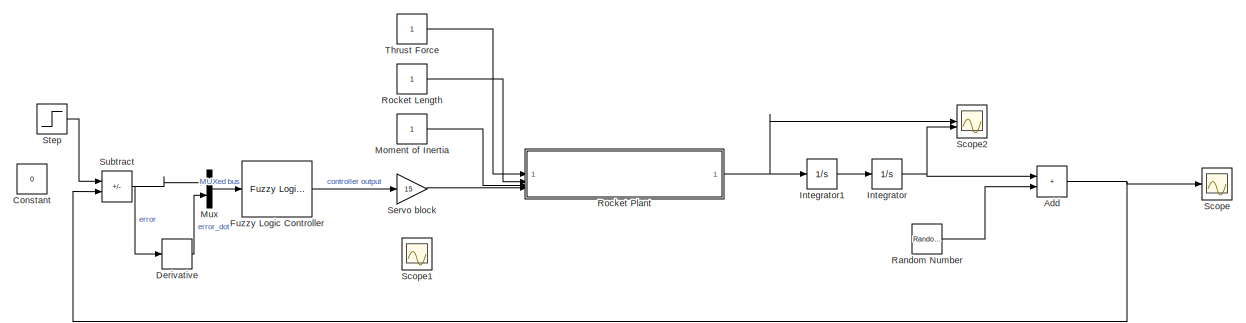
[diagram: root canvas - part 1/2, central region]
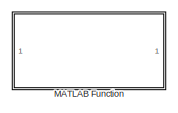
[diagram: root canvas - part 2/2, bottom right region]
MODEL slx_f3963c7aecb5
KIND model
CONFIG AbsTol = auto
CONFIG EnableMultiTasking = off
CONFIG FixedStep = auto
CONFIG MaxStep = auto
CONFIG MinStep = auto
CONFIG RelTol = 1e-3
CONFIG SampleTimeConstraint = Unconstrained
CONFIG SolverName = VariableStepAuto
CONFIG StartTime = 0.0
CONFIG StopTime = 200
BLOCK [Sum] Add
  IconShape = rectangular
BLOCK [Constant] Constant
  Value = 0
BLOCK [Derivative] Derivative
BLOCK [Reference] Fuzzy Logic Controller  REF=fuzblock/Fuzzy Logic   (lib defined in mdl_858b3b3e7478)
Controller
  SourceBlock = fuzblock/Fuzzy Logic \nController
  SourceType = Fuzzy Inference System
BLOCK [Integrator] Integrator
BLOCK [Integrator] Integrator1
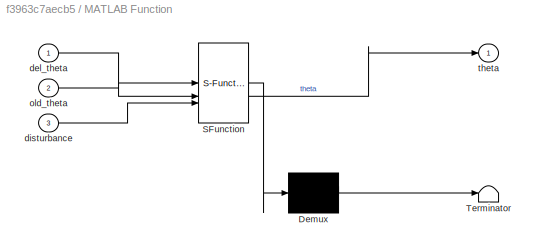
BLOCK [SubSystem] MATLAB Function
  ErrorFcn = Stateflow.Translate.translate
  PermitHierarchicalResolution = ExplicitOnly
  SFBlockType = MATLAB Function
  TreatAsAtomicUnit = on
BLOCK [Demux] MATLAB Function/ Demux 
  Outputs = 1
BLOCK [S-Function] MATLAB Function/ SFunction 
  EnableBusSupport = on
  FunctionName = sf_sfun
  PortCounts = [3 2]
  SFcnIsStateOwnerBlock = off
  SFunctionDeploymentMode = off
  Tag = Stateflow S-Function 1
BLOCK [Terminator] MATLAB Function/ Terminator 
BLOCK [Inport] MATLAB Function/del_theta
BLOCK [Inport] MATLAB Function/disturbance
  Port = 3
BLOCK [Inport] MATLAB Function/old_theta
  Port = 2
BLOCK [Outport] MATLAB Function/theta
BLOCK [Constant] Moment of Inertia
BLOCK [Mux] Mux
  DisplayOption = signals
  Inputs = 2
BLOCK [RandomNumber] Random Number
  SampleTime = 0.1
  Variance = 0.01
BLOCK [Constant] Rocket Length
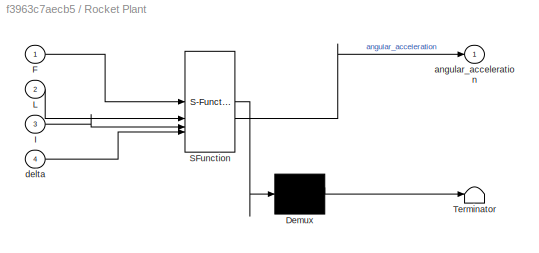
BLOCK [SubSystem] Rocket Plant
  ErrorFcn = Stateflow.Translate.translate
  PermitHierarchicalResolution = ExplicitOnly
  SFBlockType = MATLAB Function
  TreatAsAtomicUnit = on
BLOCK [Demux] Rocket Plant/ Demux 
  Outputs = 1
BLOCK [S-Function] Rocket Plant/ SFunction 
  EnableBusSupport = on
  FunctionName = sf_sfun
  PortCounts = [4 2]
  SFcnIsStateOwnerBlock = off
  SFunctionDeploymentMode = off
  Tag = Stateflow S-Function 2
BLOCK [Terminator] Rocket Plant/ Terminator 
BLOCK [Inport] Rocket Plant/F
BLOCK [Inport] Rocket Plant/I
  Port = 3
BLOCK [Inport] Rocket Plant/L
  Port = 2
BLOCK [Outport] Rocket Plant/angular_acceleration
BLOCK [Inport] Rocket Plant/delta
  Port = 4
BLOCK [Scope] Scope
  Floating = off
  NumInputPorts = 1
  ScopeSpecificationString = Simulink.scopes.TimeScopeBlockCfg('CurrentConfiguration', extmgr.ConfigurationSet(extmgr.Configuration('Core','General UI',true),extmgr.Configuration('Core','Source UI',true),extmgr.Configuration('Sources','WiredSimulink',true),extmgr.Configuration('Visuals','Time Domain',true,'SerializedDisplays',{struct('MinYLimReal','-1.22963','MaxYLimReal','9.61509','YLabelReal','','MinYLimMag','0.00000','MaxY...<+1480ch>
BLOCK [Scope] Scope1
  Floating = off
  NumInputPorts = 1
  ScopeSpecificationString = Simulink.scopes.TimeScopeBlockCfg('CurrentConfiguration', extmgr.ConfigurationSet(extmgr.Configuration('Core','General UI',true),extmgr.Configuration('Core','Source UI',true),extmgr.Configuration('Sources','WiredSimulink',true,'DataLoggingVariableName','ScopeData1'),extmgr.Configuration('Visuals','Time Domain',true,'SerializedDisplays',{struct('MinYLimReal','-1.81493','MaxYLimReal','12.76377','YLa...<+1541ch>
BLOCK [Scope] Scope2
  Floating = off
  NumInputPorts = 2
  ScopeSpecificationString = Simulink.scopes.TimeScopeBlockCfg('CurrentConfiguration', extmgr.ConfigurationSet(extmgr.Configuration('Core','General UI',true),extmgr.Configuration('Core','Source UI',true),extmgr.Configuration('Sources','WiredSimulink',true,'DataLoggingVariableName','ScopeData2'),extmgr.Configuration('Visuals','Time Domain',true,'SerializedDisplays',{struct('MinYLimReal','-0.12879','MaxYLimReal','1.12542','YLab...<+1524ch>
BLOCK [Gain] Servo block
  Gain = 15
BLOCK [Step] Step
  After = 8
  SampleTime = 0
BLOCK [Sum] Subtract
  IconShape = rectangular
  Inputs = +-
BLOCK [Constant] Thrust Force
NET Add:1 -> Scope:1, Subtract:2
LINE Derivative:1 -> Mux:2
LINE Fuzzy Logic Controller:1 -> Servo block:1
LINE Integrator1:1 -> Integrator:1
NET Integrator:1 -> Add:1, Scope2:2
LINE Moment of Inertia:1 -> Rocket Plant:3
LINE Mux:1 -> Fuzzy Logic Controller:1
LINE Random Number:1 -> Add:2
LINE Rocket Length:1 -> Rocket Plant:2
NET Rocket Plant:1 -> Integrator1:1, Scope2:1
LINE Servo block:1 -> Rocket Plant:4
LINE Step:1 -> Subtract:1
NET Subtract:1 -> Derivative:1, Mux:1
LINE Thrust Force:1 -> Rocket Plant:1
note: NET lines group one-source signal fan-out (src -> all destinations, sorted); 1:1 wires keep LINE
CHART MATLAB Function states=1 transitions=1
  STATE_LABEL 'eML_blk_kernel()'
  STATE_LABEL 'SCRIPT:\nfunction theta = accumulator(del_theta, old_theta, disturbance)\n\ntheta = old_theta + del_theta + disturbance;\n'
CHART Rocket Plant states=1 transitions=1
  STATE_LABEL 'eML_blk_kernel()'
  STATE_LABEL 'SCRIPT:\nfunction angular_acceleration = rocket_plant(F, L, I, delta)\n\nangular_acceleration = (F*sin(delta)*L)/I;\n%omega=  omega+ acc*dt\n%theta= theta+ omega*dt\n\n'
CHART  states=0 transitions=0
CHART  states=0 transitions=0
